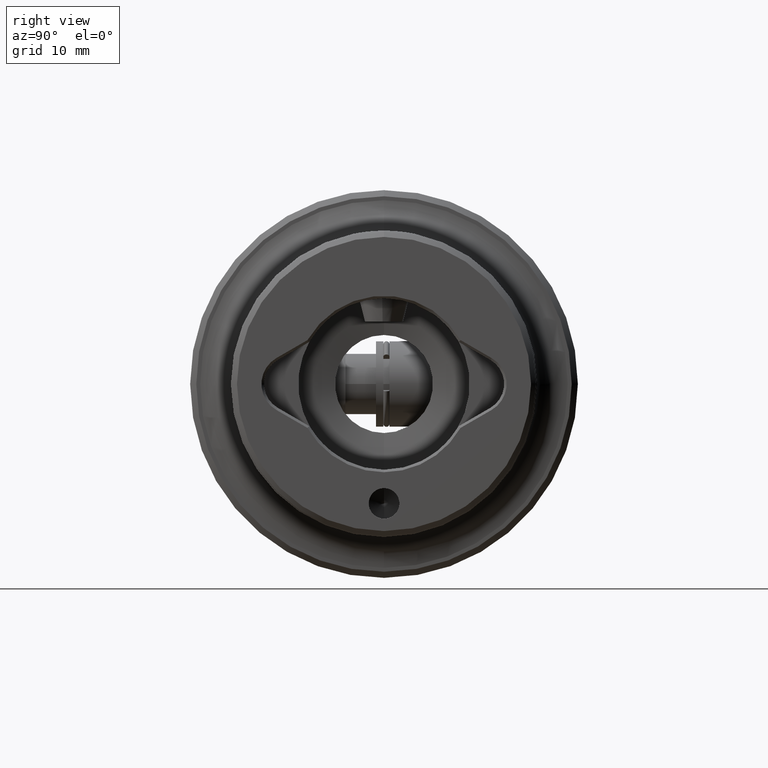
[diagram: clean part render]
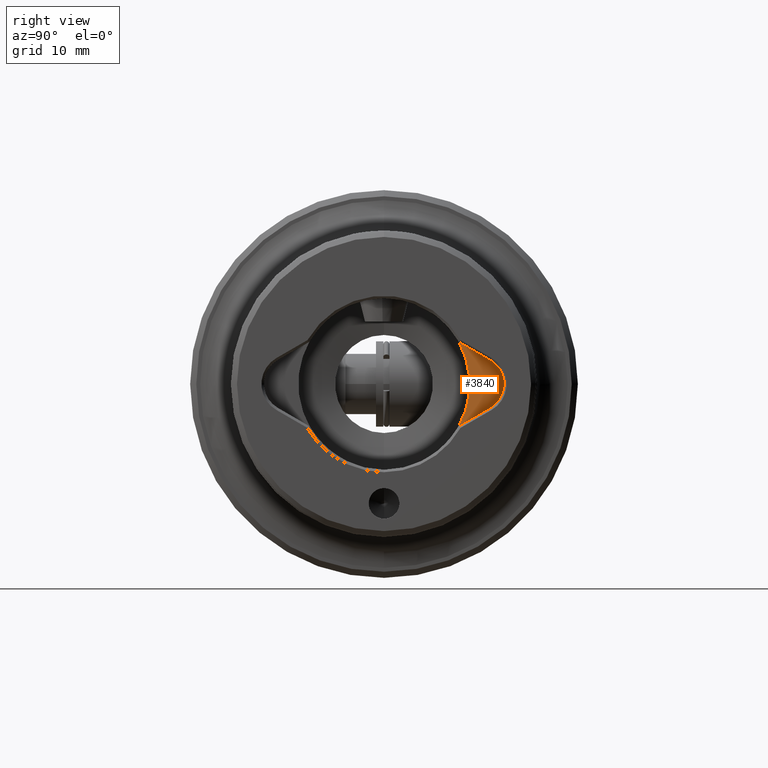
[diagram: same view with one face highlighted and labeled with its STEP entity id]
A machine part, right view. The second image highlights one B-rep face of the part: STEP entity #3840.
In plain terms, the highlighted planar face has unit normal (1, 0, 0).
Its self-contained STEP definition (entity closure, byte-faithful):
#91 = VECTOR ( 'NONE', #1462, 1000.000000000000100 ) ;
#278 = CIRCLE ( 'NONE', #2556, 4.499999999999990200 ) ;
#373 = DIRECTION ( 'NONE',  ( -1.000000000000000000, -0.0000000000000000000, -0.0000000000000000000 ) ) ;
#518 = DIRECTION ( 'NONE',  ( 0.0000000000000000000, 0.8660254037844386000, 0.5000000000000000000 ) ) ;
#592 = AXIS2_PLACEMENT_3D ( 'NONE', #5118, #5101, #3480 ) ;
#701 = ORIENTED_EDGE ( 'NONE', *, *, #941, .T. ) ;
#941 = EDGE_CURVE ( 'NONE', #4161, #3664, #1050, .T. ) ;
#1050 = LINE ( 'NONE', #1066, #91 ) ;
#1066 = CARTESIAN_POINT ( 'NONE',  ( 65.40000000003273300, 17.35000000000000900, 3.897114317029971800 ) ) ;
#1142 = VECTOR ( 'NONE', #518, 1000.000000000000200 ) ;
#1169 = CARTESIAN_POINT ( 'NONE',  ( 65.40000000003273300, 15.10000000000000500, -6.938893903907228400E-015 ) ) ;
#1223 = CARTESIAN_POINT ( 'NONE',  ( 65.40000000003273300, 17.35000000000000900, 3.897114317029971800 ) ) ;
#1342 = ORIENTED_EDGE ( 'NONE', *, *, #1573, .T. ) ;
#1462 = DIRECTION ( 'NONE',  ( 0.0000000000000000000, -0.8660254037844393700, 0.4999999999999986700 ) ) ;
#1570 = DIRECTION ( 'NONE',  ( 0.0000000000000000000, 0.0000000000000000000, 1.000000000000000000 ) ) ;
#1573 = EDGE_CURVE ( 'NONE', #1906, #4161, #278, .T. ) ;
#1906 = VERTEX_POINT ( 'NONE', #4628 ) ;
#1989 = EDGE_LOOP ( 'NONE', ( #3897, #2917, #1342, #701 ) ) ;
#2204 = LINE ( 'NONE', #4122, #1142 ) ;
#2214 = EDGE_CURVE ( 'NONE', #3664, #4401, #3600, .T. ) ;
#2342 = CARTESIAN_POINT ( 'NONE',  ( 65.40000000003273300, 12.19736786006797600, -6.871987870054824500 ) ) ;
#2556 = AXIS2_PLACEMENT_3D ( 'NONE', #1169, #3975, #1570 ) ;
#2767 = CARTESIAN_POINT ( 'NONE',  ( 65.40000000003273300, 0.0000000000000000000, 0.0000000000000000000 ) ) ;
#2917 = ORIENTED_EDGE ( 'NONE', *, *, #3313, .T. ) ;
#3068 = PLANE ( 'NONE',  #592 ) ;
#3181 = DIRECTION ( 'NONE',  ( 0.0000000000000000000, 3.552713678800500900E-015, -1.000000000000000000 ) ) ;
#3313 = EDGE_CURVE ( 'NONE', #4401, #1906, #2204, .T. ) ;
#3480 = DIRECTION ( 'NONE',  ( 0.0000000000000000000, 0.0000000000000000000, -1.000000000000000000 ) ) ;
#3600 = CIRCLE ( 'NONE', #3708, 13.99999999999999600 ) ;
#3638 = CARTESIAN_POINT ( 'NONE',  ( 65.40000000003273300, 12.19736786006796700, 6.871987870054844000 ) ) ;
#3664 = VERTEX_POINT ( 'NONE', #3638 ) ;
#3708 = AXIS2_PLACEMENT_3D ( 'NONE', #2767, #373, #3181 ) ;
#3840 = ADVANCED_FACE ( 'NONE', ( #4226 ), #3068, .T. ) ;
#3897 = ORIENTED_EDGE ( 'NONE', *, *, #2214, .T. ) ;
#3975 = DIRECTION ( 'NONE',  ( 1.000000000000000000, 0.0000000000000000000, -0.0000000000000000000 ) ) ;
#4122 = CARTESIAN_POINT ( 'NONE',  ( 65.40000000003273300, 10.24359353944894800, -8.000000000000000000 ) ) ;
#4161 = VERTEX_POINT ( 'NONE', #1223 ) ;
#4226 = FACE_OUTER_BOUND ( 'NONE', #1989, .T. ) ;
#4401 = VERTEX_POINT ( 'NONE', #2342 ) ;
#4628 = CARTESIAN_POINT ( 'NONE',  ( 65.40000000003273300, 17.35000000000000100, -3.897114317029972700 ) ) ;
#5101 = DIRECTION ( 'NONE',  ( 1.000000000000000000, 0.0000000000000000000, 0.0000000000000000000 ) ) ;
#5118 = CARTESIAN_POINT ( 'NONE',  ( 65.40000000003273300, -15.10000000000000500, -6.938893903907228400E-015 ) ) ;